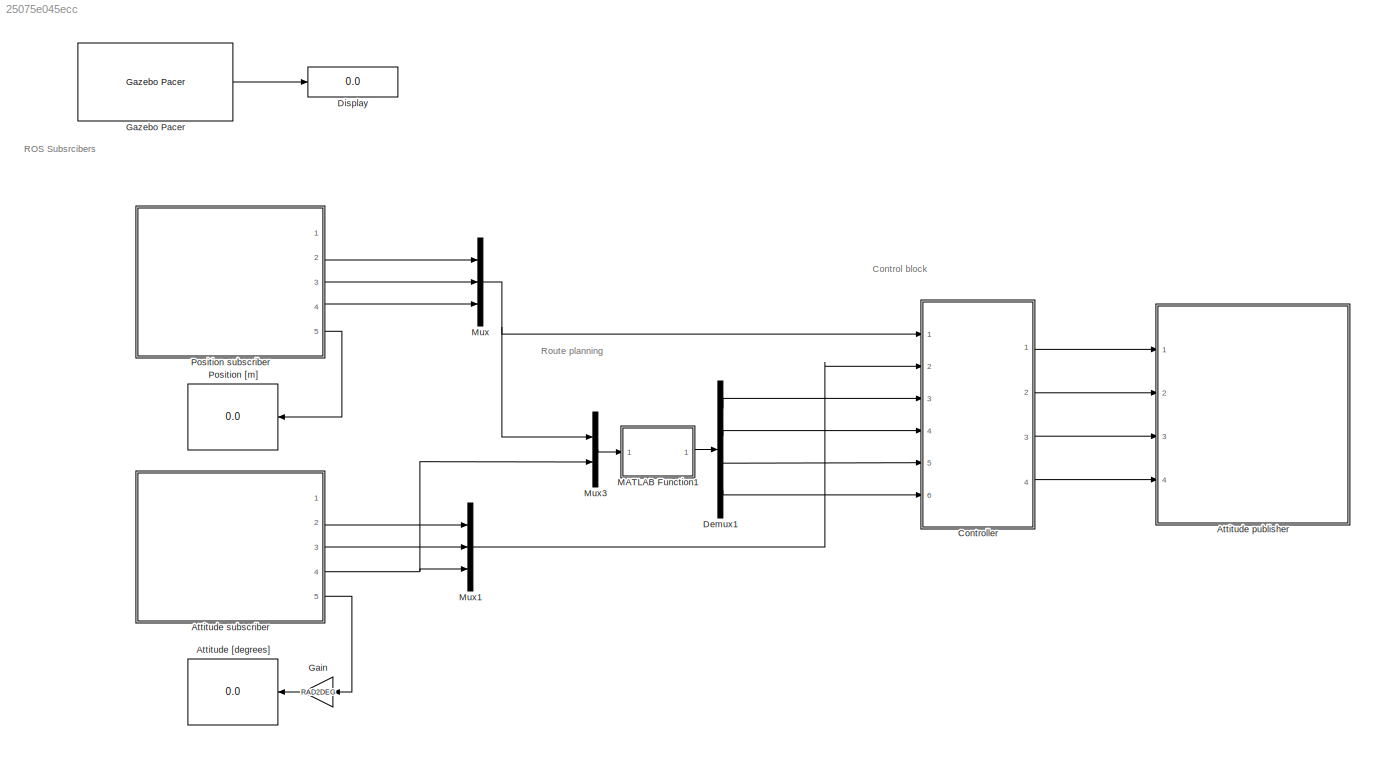
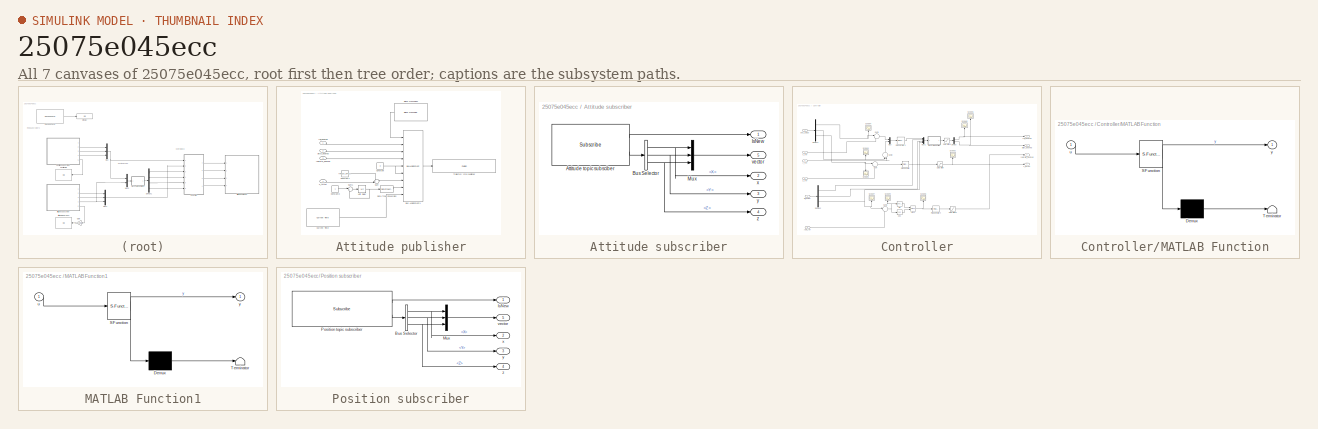
[diagram: thumbnail index - all 7 canvases of the model, root first then tree order]
MODEL slx_25075e045ecc
KIND model
CONFIG AbsTol = auto
CONFIG EnableMultiTasking = off
CONFIG FixedStep = FIXED_STEP_SIZE
CONFIG MaxStep = auto
CONFIG MinStep = auto
CONFIG RelTol = 1e-3
CONFIG SampleTimeConstraint = Unconstrained
CONFIG Solver = FixedStepAuto
CONFIG SolverName = FixedStepAuto
CONFIG StartTime = 0.0
CONFIG StopTime = inf
WORKSPACE source: mxarray member
WORKSPACE K_ip = 0
WORKSPACE K_pp = 3
BLOCK [Display] Attitude [degrees]
  Decimation = 1
  Ports = [1]
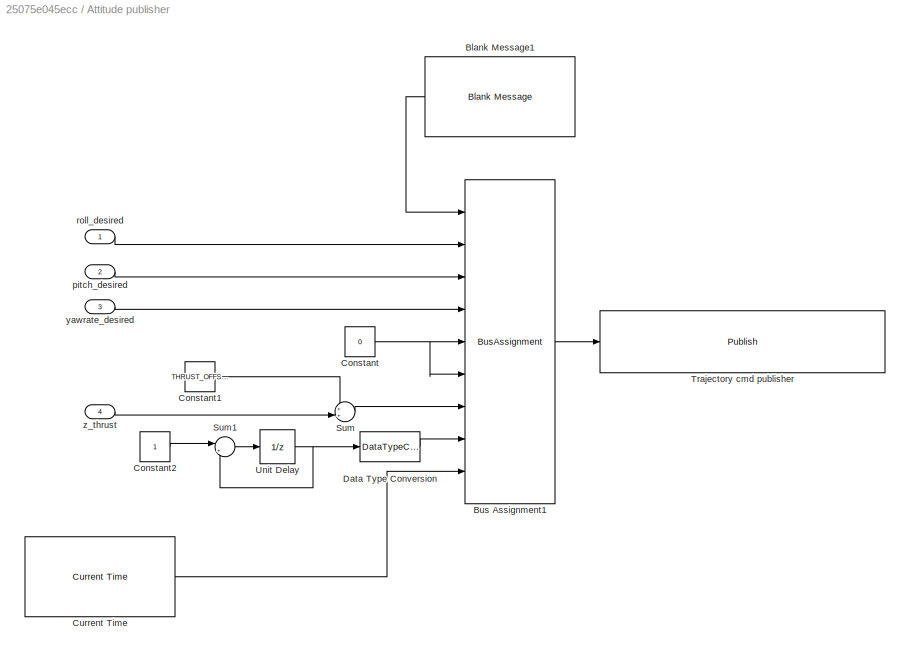
BLOCK [SubSystem] Attitude publisher
  Ports = [4]
  RequestExecContextInheritance = off
BLOCK [Reference] Attitude publisher/Blank Message1  REF=robotlib/Blank Message
  Ports = [0, 1]
  SourceBlock = robotlib/Blank Message
  SourceProductBaseCode = RR
  SourceProductName = ROS Toolbox
  SourceType = ROS Blank Message
BLOCK [BusAssignment] Attitude publisher/Bus Assignment1
  AssignedSignals = Roll,Pitch,YawRate,Thrust.X,Thrust.Y,Thrust.Z,Header.Seq,Header.Stamp
  Ports = [9, 1]
BLOCK [Constant] Attitude publisher/Constant
  Value = 0
BLOCK [Constant] Attitude publisher/Constant1
  Value = THRUST_OFFSET
BLOCK [Constant] Attitude publisher/Constant2
BLOCK [Reference] Attitude publisher/Current Time  REF=robotlib/Current Time
  Ports = [0, 1]
  SourceBlock = robotlib/Current Time
  SourceProductBaseCode = RR
  SourceProductName = ROS Toolbox
  SourceType = ros.slros.internal.block.CurrentTime
BLOCK [DataTypeConversion] Attitude publisher/Data Type Conversion
  OutDataTypeStr = uint32
  RndMeth = Floor
  SaturateOnIntegerOverflow = off
BLOCK [Sum] Attitude publisher/Sum
  IconShape = round
  InputSameDT = off
  Inputs = ++|
  OutDataTypeStr = Inherit: Inherit via internal rule
  Ports = [2, 1]
  SaturateOnIntegerOverflow = off
BLOCK [Sum] Attitude publisher/Sum1
  IconShape = round
  InputSameDT = off
  Inputs = |++
  OutDataTypeStr = Inherit: Inherit via internal rule
  Ports = [2, 1]
  SaturateOnIntegerOverflow = off
BLOCK [Reference] Attitude publisher/Trajectory cmd publisher  REF=robotlib/Publish
  Ports = [1]
  SourceBlock = robotlib/Publish
  SourceProductBaseCode = RR
  SourceProductName = ROS Toolbox
  SourceType = ROS Publish
BLOCK [UnitDelay] Attitude publisher/Unit Delay
  HasFrameUpgradeWarning = on
  SampleTime = FIXED_STEP_SIZE
BLOCK [Inport] Attitude publisher/pitch_desired
  IconDisplay = Port number
  Port = 2
BLOCK [Inport] Attitude publisher/roll_desired
  IconDisplay = Port number
BLOCK [Inport] Attitude publisher/yawrate_desired
  IconDisplay = Port number
  Port = 3
BLOCK [Inport] Attitude publisher/z_thrust
  IconDisplay = Port number
  Port = 4
BLOCK [SubSystem] Attitude subscriber
  Ports = [0, 5]
  RequestExecContextInheritance = off
BLOCK [Reference] Attitude subscriber/Attitude topic subsciber  REF=robotlib/Subscribe
  Ports = [0, 2]
  SourceBlock = robotlib/Subscribe
  SourceProductBaseCode = RR
  SourceProductName = ROS Toolbox
  SourceType = ROS Subscribe
BLOCK [BusSelector] Attitude subscriber/Bus Selector
  OutputAsBus = off
  OutputSignals = X,Y,Z
  Ports = [1, 3]
BLOCK [Outport] Attitude subscriber/IsNew
  IconDisplay = Port number
BLOCK [Mux] Attitude subscriber/Mux
  DisplayOption = bar
  Inputs = 3
  Ports = [3, 1]
BLOCK [Outport] Attitude subscriber/vector
  IconDisplay = Port number
  Port = 5
BLOCK [Outport] Attitude subscriber/x
  IconDisplay = Port number
  Port = 2
BLOCK [Outport] Attitude subscriber/y
  IconDisplay = Port number
  Port = 3
BLOCK [Outport] Attitude subscriber/z
  IconDisplay = Port number
  Port = 4
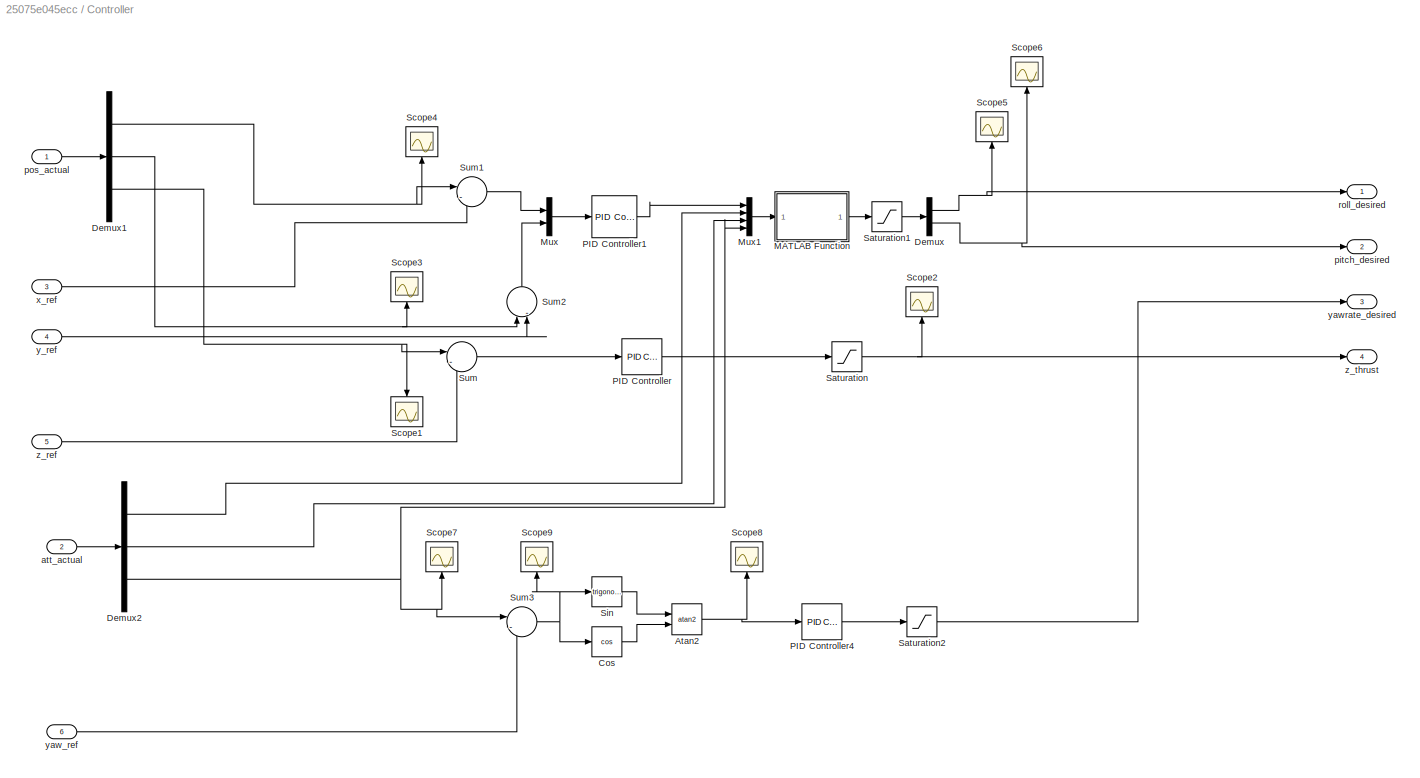
BLOCK [SubSystem] Controller
  Ports = [6, 4]
  RequestExecContextInheritance = off
BLOCK [Trigonometry] Controller/Atan2
  Operator = atan2
  Ports = [2, 1]
BLOCK [Trigonometry] Controller/Cos
  Operator = cos
  Ports = [1, 1]
BLOCK [Demux] Controller/Demux
  DisplayOption = bar
  Outputs = 2
  Ports = [1, 2]
BLOCK [Demux] Controller/Demux1
  DisplayOption = bar
  Outputs = 3
  Ports = [1, 3]
BLOCK [Demux] Controller/Demux2
  DisplayOption = bar
  Outputs = 3
  Ports = [1, 3]
BLOCK [SubSystem] Controller/MATLAB Function
  ErrorFcn = Stateflow.Translate.translate
  PermitHierarchicalResolution = ExplicitOnly
  Ports = [1, 1]
  RequestExecContextInheritance = off
  SFBlockType = MATLAB Function
  TreatAsAtomicUnit = on
BLOCK [Demux] Controller/MATLAB Function/ Demux 
  Outputs = 1
  Ports = [1, 1]
BLOCK [S-Function] Controller/MATLAB Function/ SFunction 
  EnableBusSupport = on
  FunctionName = sf_sfun
  PortCounts = [1 2]
  Ports = [1, 2]
  SFcnIsStateOwnerBlock = off
  SFunctionDeploymentMode = off
  Tag = Stateflow S-Function 2
BLOCK [Terminator] Controller/MATLAB Function/ Terminator 
BLOCK [Inport] Controller/MATLAB Function/u
  IconDisplay = Port number
BLOCK [Outport] Controller/MATLAB Function/y
  IconDisplay = Port number
BLOCK [Mux] Controller/Mux
  DisplayOption = bar
  Inputs = 2
  Ports = [2, 1]
BLOCK [Mux] Controller/Mux1
  DisplayOption = bar
  Ports = [4, 1]
BLOCK [Reference] Controller/PID Controller  REF=simulink/Continuous/PID Controller
  Ports = [1, 1]
  SourceBlock = simulink/Continuous/PID Controller
  SourceProductBaseCode = SL
  SourceProductName = Simulink
  SourceType = PID 1dof
BLOCK [Reference] Controller/PID Controller1  REF=simulink/Continuous/PID Controller
  Ports = [1, 1]
  SourceBlock = simulink/Continuous/PID Controller
  SourceProductBaseCode = SL
  SourceProductName = Simulink
  SourceType = PID 1dof
BLOCK [Reference] Controller/PID Controller4  REF=simulink/Continuous/PID Controller
  Ports = [1, 1]
  SourceBlock = simulink/Continuous/PID Controller
  SourceProductBaseCode = SL
  SourceProductName = Simulink
  SourceType = PID 1dof
BLOCK [Saturate] Controller/Saturation
  InputPortMap = u0
  LowerLimit = -15
  Ports = [1, 1]
  UpperLimit = 15
BLOCK [Saturate] Controller/Saturation1
  InputPortMap = u0
  LowerLimit = -0.4
  Ports = [1, 1]
  UpperLimit = 0.4
BLOCK [Saturate] Controller/Saturation2
  InputPortMap = u0
  LowerLimit = -8
  Ports = [1, 1]
  UpperLimit = 8
BLOCK [Scope] Controller/Scope1
  Floating = off
  NumInputPorts = 1
  Ports = [1]
  ScopeSpecificationString = Simulink.scopes.TimeScopeBlockCfg('CurrentConfiguration', extmgr.ConfigurationSet(extmgr.Configuration('Core','General UI',true),extmgr.Configuration('Core','Source UI',true),extmgr.Configuration('Sources','WiredSimulink',true,'DataLoggingVariableName','ScopeData1'),extmgr.Configuration('Visuals','Time Domain',true,'SerializedDisplays',{struct('MinYLimReal','-0.12529','MaxYLimReal','1.12759','YLab...<+1421ch>
BLOCK [Scope] Controller/Scope2
  Floating = off
  NumInputPorts = 1
  Ports = [1]
  ScopeSpecificationString = Simulink.scopes.TimeScopeBlockCfg('CurrentConfiguration', extmgr.ConfigurationSet(extmgr.Configuration('Core','General UI',true),extmgr.Configuration('Core','Source UI',true),extmgr.Configuration('Sources','WiredSimulink',true),extmgr.Configuration('Visuals','Time Domain',true,'SerializedDisplays',{struct('MinYLimReal','-18.75','MaxYLimReal','18.75','YLabelReal','','MinYLimMag','0.00000','MaxYLimM...<+1347ch>
BLOCK [Scope] Controller/Scope3
  Floating = off
  NumInputPorts = 1
  Ports = [1]
  ScopeSpecificationString = Simulink.scopes.TimeScopeBlockCfg('CurrentConfiguration', extmgr.ConfigurationSet(extmgr.Configuration('Core','General UI',true),extmgr.Configuration('Core','Source UI',true),extmgr.Configuration('Sources','WiredSimulink',true,'DataLoggingVariableName','ScopeData1'),extmgr.Configuration('Visuals','Time Domain',true,'SerializedDisplays',{struct('MinYLimReal','-0.11079','MaxYLimReal','0.01291','YLab...<+1463ch>
BLOCK [Scope] Controller/Scope4
  Floating = off
  NumInputPorts = 1
  Ports = [1]
  ScopeSpecificationString = Simulink.scopes.TimeScopeBlockCfg('CurrentConfiguration', extmgr.ConfigurationSet(extmgr.Configuration('Core','General UI',true),extmgr.Configuration('Core','Source UI',true),extmgr.Configuration('Sources','WiredSimulink',true,'DataLoggingVariableName','ScopeData2'),extmgr.Configuration('Visuals','Time Domain',true,'SerializedDisplays',{struct('MinYLimReal','-0.50034','MaxYLimReal','4.50004','YLab...<+1463ch>
BLOCK [Scope] Controller/Scope5
  Floating = off
  NumInputPorts = 1
  Ports = [1]
  ScopeSpecificationString = Simulink.scopes.TimeScopeBlockCfg('CurrentConfiguration', extmgr.ConfigurationSet(extmgr.Configuration('Core','General UI',true),extmgr.Configuration('Core','Source UI',true),extmgr.Configuration('Sources','WiredSimulink',true,'DataLoggingVariableName','ScopeData3'),extmgr.Configuration('Visuals','Time Domain',true,'SerializedDisplays',{struct('MinYLimReal','-0.5','MaxYLimReal','0.5','YLabelReal',...<+1396ch>
BLOCK [Scope] Controller/Scope6
  Floating = off
  NumInputPorts = 1
  Ports = [1]
  ScopeSpecificationString = Simulink.scopes.TimeScopeBlockCfg('CurrentConfiguration', extmgr.ConfigurationSet(extmgr.Configuration('Core','General UI',true),extmgr.Configuration('Core','Source UI',true),extmgr.Configuration('Sources','WiredSimulink',true,'DataLoggingVariableName','ScopeData4'),extmgr.Configuration('Visuals','Time Domain',true,'SerializedDisplays',{struct('MinYLimReal','-0.03596','MaxYLimReal','0.04133','YLab...<+1421ch>
BLOCK [Scope] Controller/Scope7
  Floating = off
  NumInputPorts = 1
  Ports = [1]
  ScopeSpecificationString = Simulink.scopes.TimeScopeBlockCfg('CurrentConfiguration', extmgr.ConfigurationSet(extmgr.Configuration('Core','General UI',true),extmgr.Configuration('Core','Source UI',true),extmgr.Configuration('Sources','WiredSimulink',true,'DataLoggingVariableName','ScopeData1'),extmgr.Configuration('Visuals','Time Domain',true,'SerializedDisplays',{struct('MinYLimReal','-0.12769','MaxYLimReal','0.05268','YLab...<+1421ch>
BLOCK [Scope] Controller/Scope8
  Floating = off
  NumInputPorts = 1
  Ports = [1]
  ScopeSpecificationString = Simulink.scopes.TimeScopeBlockCfg('CurrentConfiguration', extmgr.ConfigurationSet(extmgr.Configuration('Core','General UI',true),extmgr.Configuration('Core','Source UI',true),extmgr.Configuration('Sources','WiredSimulink',true,'DataLoggingVariableName','ScopeData2'),extmgr.Configuration('Visuals','Time Domain',true,'SerializedDisplays',{struct('MinYLimReal','-0.51741','MaxYLimReal','3.54815','YLab...<+1466ch>
BLOCK [Scope] Controller/Scope9
  Floating = off
  NumInputPorts = 1
  Ports = [1]
  ScopeSpecificationString = Simulink.scopes.TimeScopeBlockCfg('CurrentConfiguration', extmgr.ConfigurationSet(extmgr.Configuration('Core','General UI',true),extmgr.Configuration('Core','Source UI',true),extmgr.Configuration('Sources','WiredSimulink',true,'DataLoggingVariableName','ScopeData3'),extmgr.Configuration('Visuals','Time Domain',true,'SerializedDisplays',{struct('MinYLimReal','-1.57065','MaxYLimReal','14.13587','YLa...<+1470ch>
BLOCK [Trigonometry] Controller/Sin
  Ports = [1, 1]
BLOCK [Sum] Controller/Sum
  IconShape = round
  InputSameDT = off
  Inputs = |-+
  OutDataTypeStr = Inherit: Inherit via internal rule
  Ports = [2, 1]
  SaturateOnIntegerOverflow = off
BLOCK [Sum] Controller/Sum1
  IconShape = round
  InputSameDT = off
  Inputs = |-+
  OutDataTypeStr = Inherit: Inherit via internal rule
  Ports = [2, 1]
  SaturateOnIntegerOverflow = off
BLOCK [Sum] Controller/Sum2
  IconShape = round
  InputSameDT = off
  Inputs = |-+
  OutDataTypeStr = Inherit: Inherit via internal rule
  Ports = [2, 1]
  SaturateOnIntegerOverflow = off
BLOCK [Sum] Controller/Sum3
  IconShape = round
  InputSameDT = off
  Inputs = |-+
  OutDataTypeStr = Inherit: Inherit via internal rule
  Ports = [2, 1]
  SaturateOnIntegerOverflow = off
BLOCK [Inport] Controller/att_actual
  IconDisplay = Port number
  Port = 2
BLOCK [Outport] Controller/pitch_desired
  IconDisplay = Port number
  Port = 2
BLOCK [Inport] Controller/pos_actual
  IconDisplay = Port number
BLOCK [Outport] Controller/roll_desired
  IconDisplay = Port number
BLOCK [Inport] Controller/x_ref
  IconDisplay = Port number
  Port = 3
BLOCK [Inport] Controller/y_ref
  IconDisplay = Port number
  Port = 4
BLOCK [Inport] Controller/yaw_ref
  IconDisplay = Port number
  Port = 6
BLOCK [Outport] Controller/yawrate_desired
  IconDisplay = Port number
  Port = 3
BLOCK [Inport] Controller/z_ref
  IconDisplay = Port number
  Port = 5
BLOCK [Outport] Controller/z_thrust
  IconDisplay = Port number
  Port = 4
BLOCK [Demux] Demux1
  DisplayOption = bar
  Ports = [1, 4]
BLOCK [Display] Display
  Decimation = 1
  Ports = [1]
BLOCK [Gain] Gain
  Gain = RAD2DEG
  OutDataTypeStr = Inherit: Inherit via internal rule
  ParamDataTypeStr = Inherit: Inherit via internal rule
  SaturateOnIntegerOverflow = off
BLOCK [Reference] Gazebo Pacer  REF=robotgazebolib/Gazebo Pacer
  Ports = [0, 1]
  SourceBlock = robotgazebolib/Gazebo Pacer
  SourceProductBaseCode = RO
  SourceProductName = Robotics System Toolbox
  SourceType = Gazebo Pacer
BLOCK [SubSystem] MATLAB Function1
  ErrorFcn = Stateflow.Translate.translate
  PermitHierarchicalResolution = ExplicitOnly
  Ports = [1, 1]
  RequestExecContextInheritance = off
  SFBlockType = MATLAB Function
  TreatAsAtomicUnit = on
BLOCK [Demux] MATLAB Function1/ Demux 
  Outputs = 1
  Ports = [1, 1]
BLOCK [S-Function] MATLAB Function1/ SFunction 
  EnableBusSupport = on
  FunctionName = sf_sfun
  Parameters = route_3d
  PortCounts = [1 2]
  Ports = [1, 2]
  SFcnIsStateOwnerBlock = off
  SFunctionDeploymentMode = off
  Tag = Stateflow S-Function 3
BLOCK [Terminator] MATLAB Function1/ Terminator 
BLOCK [Inport] MATLAB Function1/u
  IconDisplay = Port number
BLOCK [Outport] MATLAB Function1/y
  IconDisplay = Port number
BLOCK [Mux] Mux
  DisplayOption = bar
  Inputs = 3
  Ports = [3, 1]
BLOCK [Mux] Mux1
  DisplayOption = bar
  Inputs = 3
  Ports = [3, 1]
BLOCK [Mux] Mux3
  DisplayOption = bar
  Inputs = 2
  Ports = [2, 1]
BLOCK [Display] Position [m]
  Decimation = 1
  Ports = [1]
BLOCK [SubSystem] Position subscriber
  Ports = [0, 5]
  RequestExecContextInheritance = off
BLOCK [BusSelector] Position subscriber/Bus Selector
  OutputAsBus = off
  OutputSignals = Point.X,Point.Y,Point.Z
  Ports = [1, 3]
BLOCK [Outport] Position subscriber/IsNew
  IconDisplay = Port number
BLOCK [Mux] Position subscriber/Mux
  DisplayOption = bar
  Inputs = 3
  Ports = [3, 1]
BLOCK [Reference] Position subscriber/Position topic subscriber  REF=robotlib/Subscribe
  Ports = [0, 2]
  SourceBlock = robotlib/Subscribe
  SourceProductBaseCode = RR
  SourceProductName = ROS Toolbox
  SourceType = ROS Subscribe
BLOCK [Outport] Position subscriber/vector
  IconDisplay = Port number
  Port = 5
BLOCK [Outport] Position subscriber/x
  IconDisplay = Port number
  Port = 2
BLOCK [Outport] Position subscriber/y
  IconDisplay = Port number
  Port = 3
BLOCK [Outport] Position subscriber/z
  IconDisplay = Port number
  Port = 4
ANNOTATION (root): Control block
ANNOTATION (root): ROS Subsrcibers
ANNOTATION (root): Route planning
LINE Attitude publisher/Blank Message1:1 -> Attitude publisher/Bus Assignment1:1
LINE Attitude publisher/Bus Assignment1:1 -> Attitude publisher/Trajectory cmd publisher:1
LINE Attitude publisher/Constant1:1 -> Attitude publisher/Sum:1
LINE Attitude publisher/Constant2:1 -> Attitude publisher/Sum1:1
NET Attitude publisher/Constant:1 -> Attitude publisher/Bus Assignment1:5, Attitude publisher/Bus Assignment1:6
LINE Attitude publisher/Current Time:1 -> Attitude publisher/Bus Assignment1:9
LINE Attitude publisher/Data Type Conversion:1 -> Attitude publisher/Bus Assignment1:8
LINE Attitude publisher/Sum1:1 -> Attitude publisher/Unit Delay:1
LINE Attitude publisher/Sum:1 -> Attitude publisher/Bus Assignment1:7
NET Attitude publisher/Unit Delay:1 -> Attitude publisher/Data Type Conversion:1, Attitude publisher/Sum1:2
LINE Attitude publisher/pitch_desired:1 -> Attitude publisher/Bus Assignment1:3
LINE Attitude publisher/roll_desired:1 -> Attitude publisher/Bus Assignment1:2
LINE Attitude publisher/yawrate_desired:1 -> Attitude publisher/Bus Assignment1:4
LINE Attitude publisher/z_thrust:1 -> Attitude publisher/Sum:2
LINE Attitude subscriber/Attitude topic subsciber:1 -> Attitude subscriber/IsNew:1
LINE Attitude subscriber/Attitude topic subsciber:2 -> Attitude subscriber/Bus Selector:1
NET Attitude subscriber/Bus Selector:1 -> Attitude subscriber/Mux:1, Attitude subscriber/x:1
NET Attitude subscriber/Bus Selector:2 -> Attitude subscriber/Mux:2, Attitude subscriber/y:1
NET Attitude subscriber/Bus Selector:3 -> Attitude subscriber/Mux:3, Attitude subscriber/z:1
LINE Attitude subscriber/Mux:1 -> Attitude subscriber/vector:1
LINE Attitude subscriber:2 -> Mux1:1
LINE Attitude subscriber:3 -> Mux1:2
NET Attitude subscriber:4 -> Mux1:3, Mux3:2
LINE Attitude subscriber:5 -> Gain:1
NET Controller/Atan2:1 -> Controller/PID Controller4:1, Controller/Scope8:1
LINE Controller/Cos:1 -> Controller/Atan2:2
NET Controller/Demux1:1 -> Controller/Scope4:1, Controller/Sum1:1
NET Controller/Demux1:2 -> Controller/Scope3:1, Controller/Sum2:1
NET Controller/Demux1:3 -> Controller/Scope1:1, Controller/Sum:1
LINE Controller/Demux2:1 -> Controller/Mux1:2
LINE Controller/Demux2:2 -> Controller/Mux1:3
NET Controller/Demux2:3 -> Controller/Mux1:4, Controller/Scope7:1, Controller/Sum3:1
NET Controller/Demux:1 -> Controller/Scope5:1, Controller/roll_desired:1
NET Controller/Demux:2 -> Controller/Scope6:1, Controller/pitch_desired:1
LINE Controller/MATLAB Function:1 -> Controller/Saturation1:1
LINE Controller/Mux1:1 -> Controller/MATLAB Function:1
LINE Controller/Mux:1 -> Controller/PID Controller1:1
LINE Controller/PID Controller1:1 -> Controller/Mux1:1
LINE Controller/PID Controller4:1 -> Controller/Saturation2:1
LINE Controller/PID Controller:1 -> Controller/Saturation:1
LINE Controller/Saturation1:1 -> Controller/Demux:1
LINE Controller/Saturation2:1 -> Controller/yawrate_desired:1
NET Controller/Saturation:1 -> Controller/Scope2:1, Controller/z_thrust:1
LINE Controller/Sin:1 -> Controller/Atan2:1
LINE Controller/Sum1:1 -> Controller/Mux:1
LINE Controller/Sum2:1 -> Controller/Mux:2
NET Controller/Sum3:1 -> Controller/Cos:1, Controller/Scope9:1, Controller/Sin:1
LINE Controller/Sum:1 -> Controller/PID Controller:1
LINE Controller/att_actual:1 -> Controller/Demux2:1
LINE Controller/pos_actual:1 -> Controller/Demux1:1
LINE Controller/x_ref:1 -> Controller/Sum1:2
LINE Controller/y_ref:1 -> Controller/Sum2:2
LINE Controller/yaw_ref:1 -> Controller/Sum3:2
LINE Controller/z_ref:1 -> Controller/Sum:2
LINE Controller:1 -> Attitude publisher:1
LINE Controller:2 -> Attitude publisher:2
LINE Controller:3 -> Attitude publisher:3
LINE Controller:4 -> Attitude publisher:4
LINE Demux1:1 -> Controller:3
LINE Demux1:2 -> Controller:4
LINE Demux1:3 -> Controller:5
LINE Demux1:4 -> Controller:6
LINE Gain:1 -> Attitude [degrees]:1
LINE Gazebo Pacer:1 -> Display:1
LINE MATLAB Function1:1 -> Demux1:1
LINE Mux1:1 -> Controller:2
LINE Mux3:1 -> MATLAB Function1:1
NET Mux:1 -> Controller:1, Mux3:1
NET Position subscriber/Bus Selector:1 -> Position subscriber/Mux:1, Position subscriber/x:1
NET Position subscriber/Bus Selector:2 -> Position subscriber/Mux:2, Position subscriber/y:1
NET Position subscriber/Bus Selector:3 -> Position subscriber/Mux:3, Position subscriber/z:1
LINE Position subscriber/Mux:1 -> Position subscriber/vector:1
LINE Position subscriber/Position topic subscriber:1 -> Position subscriber/IsNew:1
LINE Position subscriber/Position topic subscriber:2 -> Position subscriber/Bus Selector:1
LINE Position subscriber:2 -> Mux:1
LINE Position subscriber:3 -> Mux:2
LINE Position subscriber:4 -> Mux:3
LINE Position subscriber:5 -> Position [m]:1
note: NET lines group one-source signal fan-out (src -> all destinations, sorted); 1:1 wires keep LINE
CHART Controller/MATLAB Function states=1 transitions=1
  STATE_LABEL 'eML_blk_kernel()'
  STATE_LABEL 'SCRIPT:\nfunction y = fcn(u)\n\nex = u(1);\ney = u(2);\nphi = u(3);\ntheta = u(4);\npsi = u(5);\n\ny = [ex*(cos(phi)*sin(psi) - cos(psi)*sin(phi)*sin(theta)) - ey*(cos(phi)*cos(psi) + sin(phi)*sin(psi)*sin(theta));\n     ex*cos(psi)*cos(theta) + ey*cos(theta)*sin(psi)];\n\nend\n'
CHART MATLAB Function1 states=1 transitions=1
  STATE_LABEL 'eML_blk_kernel()'
  STATE_LABEL "SCRIPT:\nfunction y = fcn(u, route_3d)\n\npersistent count;\n\nif (isempty(count))\n    count = 0;\nend\n\n% yaw_ref = [0; 90; 180; -90; 0; 0]*pi/180;\nyaw_ref = zeros(1,length(route_3d)).';\n\nidx = mod(count,length(yaw_ref)) + 1;\n\nposdiff = norm(route_3d(:,idx)-u(1:3));\n\n% yawdiff = yaw_ref(idx) - u(4);\n% yawdiff = atan2(sin(yawdiff), cos(yawdiff));\n% \n% if idx == length(route)\n%     yawdiff = 0;\n% end\n\nif ...<+200ch>"
